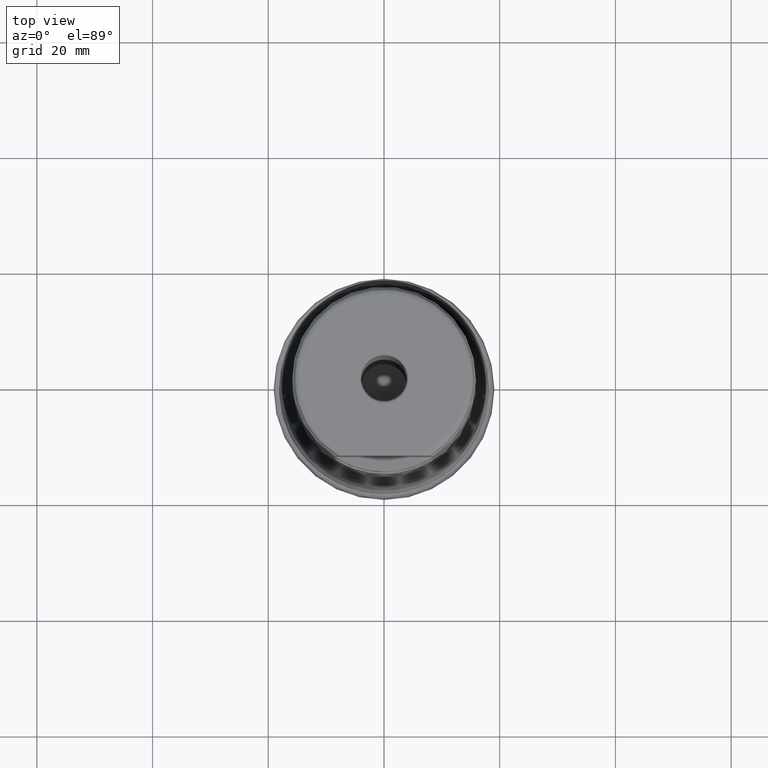
[diagram: clean part render]
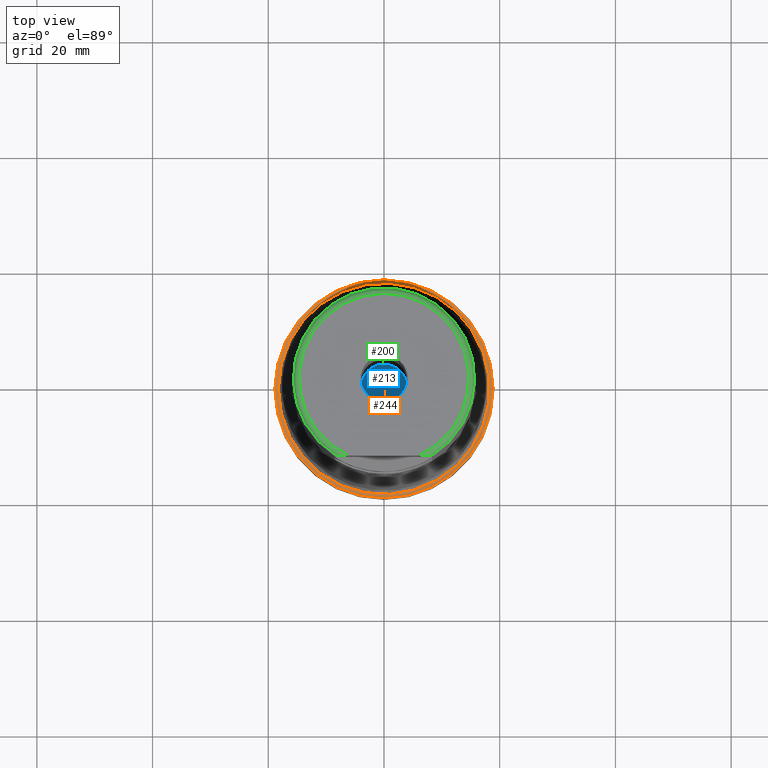
[diagram: same view with three faces highlighted in distinct colors, each labeled with its STEP entity id]
A machine part, top view with three faces highlighted in distinct colors.
Their STEP definitions:

[orange] entity #244 — the highlighted face is a SurfaceOfRevolution surface.
#121=SURFACE_OF_REVOLUTION('',#878,#144);
#144=AXIS1_PLACEMENT('',#1823,#1162);
#244=ADVANCED_FACE('',(#366,#367),#121,.F.);
#366=FACE_BOUND('',#470,.T.);
#367=FACE_BOUND('',#471,.T.);
#470=EDGE_LOOP('',(#620));
#471=EDGE_LOOP('',(#621));
#620=ORIENTED_EDGE('',*,*,#772,.T.);
#621=ORIENTED_EDGE('',*,*,#773,.F.);
#697=VERTEX_POINT('',#1795);
#698=VERTEX_POINT('',#1816);
#772=EDGE_CURVE('',#697,#697,#821,.T.);
#773=EDGE_CURVE('',#698,#698,#822,.T.);
#821=CIRCLE('',#966,18.8516088298387);
#822=CIRCLE('',#967,18.2593886567379);
#878=B_SPLINE_CURVE_WITH_KNOTS('',5,(#1817,#1818,#1819,#1820,#1821,#1822),
 .UNSPECIFIED.,.F.,.F.,(6,6),(0.,1.),.UNSPECIFIED.);
#966=AXIS2_PLACEMENT_3D('',#1794,#1157,#1158);
#967=AXIS2_PLACEMENT_3D('',#1815,#1160,#1161);
#1157=DIRECTION('',(0.,0.,-1.));
#1158=DIRECTION('',(-1.,0.,0.));
#1160=DIRECTION('',(0.,0.,-1.));
#1161=DIRECTION('',(-1.,0.,0.));
#1162=DIRECTION('',(0.,0.,-1.));
#1794=CARTESIAN_POINT('',(0.,0.,8.92982085315866));
#1795=CARTESIAN_POINT('',(-18.8516088298387,0.,8.92982085315866));
#1815=CARTESIAN_POINT('',(0.,0.,9.92211913141617));
#1816=CARTESIAN_POINT('',(-18.2593886567379,0.,9.92211913141617));
#1817=CARTESIAN_POINT('',(18.2593958784314,4.33680868994202E-16,9.92212337413766));
#1818=CARTESIAN_POINT('',(18.3777571772449,4.33680868994201E-16,9.72361437195933));
#1819=CARTESIAN_POINT('',(18.4961604662927,4.33680868994201E-16,9.52513040651015));
#1820=CARTESIAN_POINT('',(18.6146043573076,6.94518673947014E-32,9.32667066407942));
#1821=CARTESIAN_POINT('',(18.7330875522783,3.44499440706795E-32,9.12823438439904));
#1822=CARTESIAN_POINT('',(18.8516088298387,0.,8.92982085315866));
#1823=CARTESIAN_POINT('',(0.,0.,0.));

[blue] entity #213 — the highlighted conical surface has half-angle 59 deg.
#156=VERTEX_LOOP('',#677);
#171=CONICAL_SURFACE('',#930,4.,59.);
#213=ADVANCED_FACE('',(#320,#321),#171,.F.);
#320=FACE_BOUND('',#418,.T.);
#321=FACE_BOUND('',#156,.T.);
#418=EDGE_LOOP('',(#544));
#544=ORIENTED_EDGE('',*,*,#747,.T.);
#676=VERTEX_POINT('',#1603);
#677=VERTEX_POINT('',#1604);
#747=EDGE_CURVE('',#676,#676,#802,.T.);
#802=CIRCLE('',#929,4.);
#929=AXIS2_PLACEMENT_3D('',#1602,#1065,#1066);
#930=AXIS2_PLACEMENT_3D('',#1605,#1067,#1068);
#1065=DIRECTION('',(0.,1.17145536458252E-15,1.));
#1066=DIRECTION('',(0.,1.,-8.67361737988404E-16));
#1067=DIRECTION('',(0.,1.17145536458252E-15,1.));
#1068=DIRECTION('',(0.,-1.,1.14796995212101E-15));
#1602=CARTESIAN_POINT('',(0.,2.92863841145631E-14,25.));
#1603=CARTESIAN_POINT('',(0.,4.00000000000003,25.));
#1604=CARTESIAN_POINT('',(0.,2.64708585324583E-14,22.5965575238898));
#1605=CARTESIAN_POINT('',(0.,2.92863841145631E-14,25.));

[green] entity #200 — the highlighted toroidal blend (fillet) surface has major radius 14.675 mm and minor (blend) radius 1 mm.
#158=TOROIDAL_SURFACE('',#902,14.675,1.);
#187=FACE_OUTER_BOUND('',#393,.T.);
#200=ADVANCED_FACE('',(#187),#158,.T.);
#393=EDGE_LOOP('',(#516,#517,#518,#519));
#516=ORIENTED_EDGE('',*,*,#722,.F.);
#517=ORIENTED_EDGE('',*,*,#731,.T.);
#518=ORIENTED_EDGE('',*,*,#727,.F.);
#519=ORIENTED_EDGE('',*,*,#732,.T.);
#655=VERTEX_POINT('',#1521);
#656=VERTEX_POINT('',#1522);
#660=VERTEX_POINT('',#1532);
#661=VERTEX_POINT('',#1533);
#722=EDGE_CURVE('',#655,#656,#784,.T.);
#727=EDGE_CURVE('',#660,#661,#787,.T.);
#731=EDGE_CURVE('',#655,#661,#863,.T.);
#732=EDGE_CURVE('',#660,#656,#864,.T.);
#784=CIRCLE('',#895,15.675);
#787=CIRCLE('',#899,14.675);
#863=B_SPLINE_CURVE_WITH_KNOTS('',3,(#1545,#1546,#1547,#1548,#1549,#1550,
#1551,#1552),.UNSPECIFIED.,.F.,.F.,(4,2,2,4),(0.,0.249999999999998,0.499999999999997,
1.),.UNSPECIFIED.);
#864=B_SPLINE_CURVE_WITH_KNOTS('',3,(#1553,#1554,#1555,#1556,#1557,#1558,
#1559,#1560),.UNSPECIFIED.,.F.,.F.,(4,2,2,4),(0.,0.5,0.749999999999999,
1.),.UNSPECIFIED.);
#895=AXIS2_PLACEMENT_3D('',#1520,#994,#995);
#899=AXIS2_PLACEMENT_3D('',#1531,#1004,#1005);
#902=AXIS2_PLACEMENT_3D('',#1561,#1011,#1012);
#994=DIRECTION('',(0.,-1.17145536458252E-15,-1.));
#995=DIRECTION('',(0.,-1.,8.85345314693108E-16));
#1004=DIRECTION('',(0.,1.17145536458252E-15,1.));
#1005=DIRECTION('',(0.,-1.,9.45675489459248E-16));
#1011=DIRECTION('',(0.,1.17145536458252E-15,1.));
#1012=DIRECTION('',(0.,-1.,8.85345314693108E-16));
#1520=CARTESIAN_POINT('',(0.,1.327258928072E-13,113.3));
#1521=CARTESIAN_POINT('',(-8.19462575350837,-13.3623999999999,113.299999999998));
#1522=CARTESIAN_POINT('',(8.19462575350455,-13.3623999999999,113.3));
#1531=CARTESIAN_POINT('',(0.,1.33897348171783E-13,114.3));
#1532=CARTESIAN_POINT('',(6.06645623407932,-13.3623999999999,114.3));
#1533=CARTESIAN_POINT('',(-6.06645623407933,-13.3623999999999,114.3));
#1545=CARTESIAN_POINT('',(-8.19462575350498,-13.3623999999999,113.299999999998));
#1546=CARTESIAN_POINT('',(-8.19462575350591,-13.3623999999999,113.514245619215));
#1547=CARTESIAN_POINT('',(-8.05473348501011,-13.3623999999999,113.707466748487));
#1548=CARTESIAN_POINT('',(-7.7207477793319,-13.3623999999999,113.972202420889));
#1549=CARTESIAN_POINT('',(-7.52348184982914,-13.3623999999999,114.061466380317));
#1550=CARTESIAN_POINT('',(-6.9159118190965,-13.3623999999999,114.259548555666));
#1551=CARTESIAN_POINT('',(-6.49141414065777,-13.3623999999999,114.3));
#1552=CARTESIAN_POINT('',(-6.06645623407932,-13.3623999999999,114.3));
#1553=CARTESIAN_POINT('',(6.06645623407932,-13.3623999999999,114.3));
#1554=CARTESIAN_POINT('',(6.49141351093796,-13.3623999999999,114.3));
#1555=CARTESIAN_POINT('',(6.91984567689066,-13.3623999999999,114.258558274765));
#1556=CARTESIAN_POINT('',(7.52398136149152,-13.3623999999999,114.061156506566));
#1557=CARTESIAN_POINT('',(7.72119427798035,-13.3623999999999,113.971914539636));
#1558=CARTESIAN_POINT('',(8.05474827818989,-13.3623999999999,113.707388892768));
#1559=CARTESIAN_POINT('',(8.19462575350454,-13.3623999999999,113.512817489331));
#1560=CARTESIAN_POINT('',(8.19462575350454,-13.3623999999999,113.3));
#1561=CARTESIAN_POINT('',(0.,1.327258928072E-13,113.3));